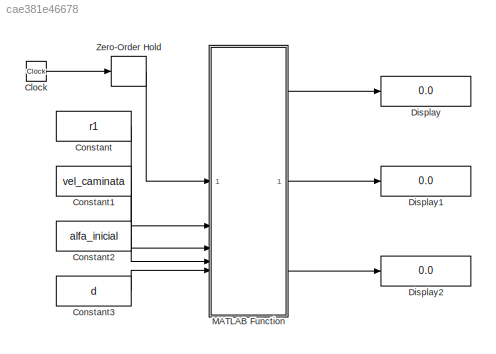
MODEL slx_cae381e46678
KIND model
CONFIG AbsTol = auto
CONFIG EnableMultiTasking = off
CONFIG FixedStep = auto
CONFIG MaxStep = auto
CONFIG MinStep = auto
CONFIG RelTol = 1e-3
CONFIG SampleTimeConstraint = Unconstrained
CONFIG SolverName = VariableStepAuto
CONFIG StartTime = 0.0
CONFIG StopTime = 3
BLOCK [Clock] Clock
  Decimation = 1
BLOCK [Constant] Constant
  Value = r1
BLOCK [Constant] Constant1
  Value = vel_caminata
BLOCK [Constant] Constant2
  Value = alfa_inicial
BLOCK [Constant] Constant3
  Value = d
BLOCK [Display] Display
  Decimation = 1
BLOCK [Display] Display1
  Decimation = 1
BLOCK [Display] Display2
  Decimation = 1
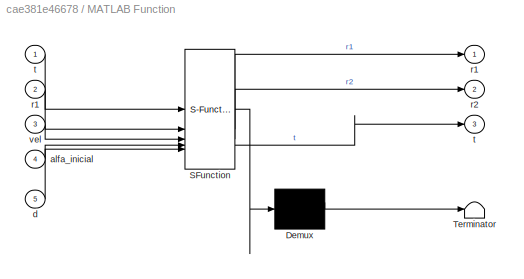
BLOCK [SubSystem] MATLAB Function
  ErrorFcn = Stateflow.Translate.translate
  LibrarySourceBlock = simulink/User-Defined\nFunctions/MATLAB Function
  PermitHierarchicalResolution = ExplicitOnly
  SFBlockType = MATLAB Function
  TreatAsAtomicUnit = on
BLOCK [Demux] MATLAB Function/ Demux 
  Outputs = 1
BLOCK [S-Function] MATLAB Function/ SFunction 
  EnableBusSupport = on
  FunctionName = sf_sfun
  PortCounts = [5 4]
  SFcnIsStateOwnerBlock = off
  SFunctionDeploymentMode = off
  Tag = Stateflow S-Function 2
BLOCK [Terminator] MATLAB Function/ Terminator 
BLOCK [Inport] MATLAB Function/alfa_inicial
  Port = 4
BLOCK [Inport] MATLAB Function/d
  Port = 5
BLOCK [Outport] MATLAB Function/r1
BLOCK [Inport] MATLAB Function/r1 
  Port = 2
BLOCK [Outport] MATLAB Function/r2
  Port = 2
BLOCK [Outport] MATLAB Function/t
  Port = 3
BLOCK [Inport] MATLAB Function/t 
BLOCK [Inport] MATLAB Function/vel
  Port = 3
BLOCK [ZeroOrderHold] Zero-Order Hold
  SampleTime = 0.1
LINE Clock:1 -> Zero-Order Hold:1
LINE Constant1:1 -> MATLAB Function:3
LINE Constant2:1 -> MATLAB Function:4
LINE Constant3:1 -> MATLAB Function:5
LINE Constant:1 -> MATLAB Function:2
LINE MATLAB Function:1 -> Display:1
LINE MATLAB Function:2 -> Display1:1
LINE MATLAB Function:3 -> Display2:1
LINE Zero-Order Hold:1 -> MATLAB Function:1
CHART MATLAB Function states=1 transitions=1
  STATE_LABEL 'eML_blk_kernel()'
  STATE_LABEL "SCRIPT:\nfunction [r1, r2,t] = fcn(t, r1, vel, alfa_inicial, d)\n\npersistent h fig\n\nomega = vel/r1;\nalfa = alfa_inicial + omega*t;\nr2 = sqrt((r1^2) + (d^2) - 2*r1*d*cos(alfa));   %Distancia a mic2\n\nx1 = r1*cos(alfa);\ny1 = r1*sin(alfa);\n\n% Inicializar el gráfico\nif isempty(h)\n    fig = figure('Name', 'Caminata en el plano', 'NumberTitle', 'off');\n    h = plot(0, 0, 'ro', 'MarkerSize', 10, 'MarkerFace...<+537ch>"
CHART  states=0 transitions=0
